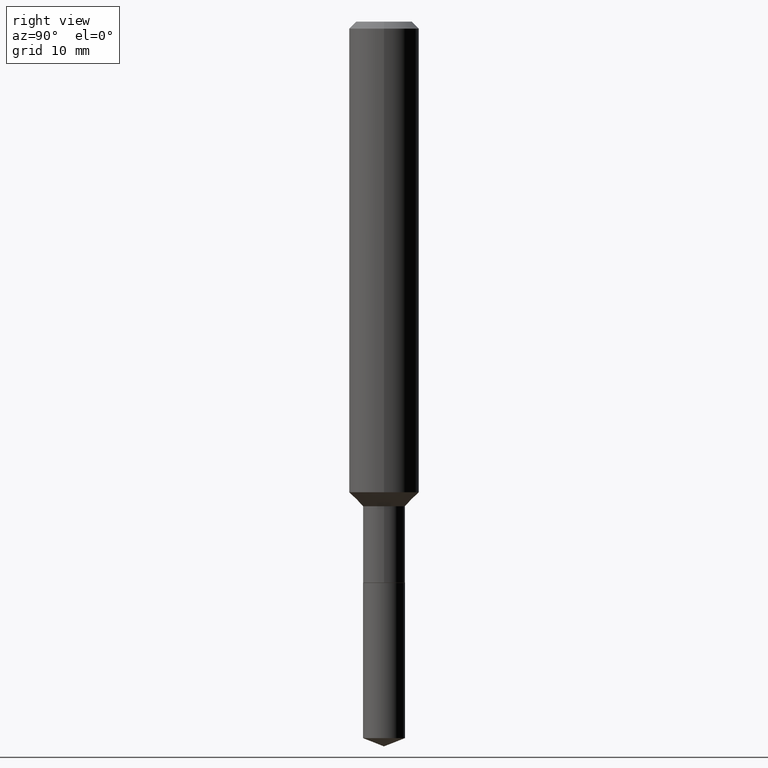
[diagram: clean part render]
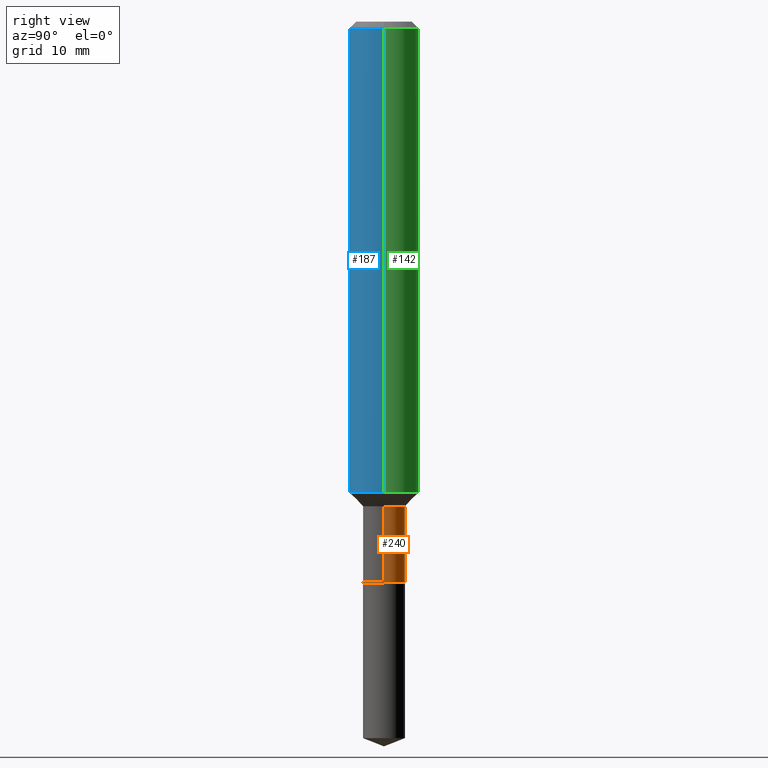
[diagram: same view with three faces highlighted in distinct colors, each labeled with its STEP entity id]
A machine part, right view with three faces highlighted in distinct colors.
Their STEP definitions:

[orange] entity #240 — the highlighted cylindrical surface (edge-blend (fillet) strip) has radius 1.7996 mm, axis along (-0, 0, 1).
#1 = VERTEX_POINT ( 'NONE', #247 ) ;
#10 = CARTESIAN_POINT ( 'NONE',  ( -0.07084999999999999631, -5.644031665015095667E-15, -1.889200000000000212 ) ) ;
#18 = ORIENTED_EDGE ( 'NONE', *, *, #101, .T. ) ;
#19 = EDGE_CURVE ( 'NONE', #117, #277, #128, .T. ) ;
#21 = DIRECTION ( 'NONE',  ( -2.445468806185136597E-29, 3.491481338843145583E-15, 1.000000000000000000 ) ) ;
#53 = CYLINDRICAL_SURFACE ( 'NONE', #166, 0.07084999999999998244 ) ;
#64 = EDGE_CURVE ( 'NONE', #1, #367, #202, .T. ) ;
#84 = ORIENTED_EDGE ( 'NONE', *, *, #200, .F. ) ;
#101 = EDGE_CURVE ( 'NONE', #277, #367, #260, .T. ) ;
#117 = VERTEX_POINT ( 'NONE', #447 ) ;
#128 = CIRCLE ( 'NONE', #261, 0.07084999999999998244 ) ;
#146 = EDGE_LOOP ( 'NONE', ( #151, #18, #456, #84 ) ) ;
#151 = ORIENTED_EDGE ( 'NONE', *, *, #19, .T. ) ;
#166 = AXIS2_PLACEMENT_3D ( 'NONE', #486, #278, #352 ) ;
#200 = EDGE_CURVE ( 'NONE', #117, #1, #425, .T. ) ;
#202 = CIRCLE ( 'NONE', #235, 0.07084999999999995468 ) ;
#224 = CARTESIAN_POINT ( 'NONE',  ( -0.07084999999999998244, 5.034195282860308569E-16, -3.485065511445599567E-30 ) ) ;
#235 = AXIS2_PLACEMENT_3D ( 'NONE', #443, #403, #478 ) ;
#240 = ADVANCED_FACE ( 'NONE', ( #392 ), #53, .T. ) ;
#247 = CARTESIAN_POINT ( 'NONE',  ( 0.07084999999999995468, -6.193538746973854908E-15, -1.632200000000000095 ) ) ;
#255 = CARTESIAN_POINT ( 'NONE',  ( 4.619979668644960403E-29, -6.596106545342470986E-15, -1.889200000000000212 ) ) ;
#259 = DIRECTION ( 'NONE',  ( -2.445468806185136877E-29, 3.491481338843145188E-15, 1.000000000000000000 ) ) ;
#260 = LINE ( 'NONE', #224, #428 ) ;
#261 = AXIS2_PLACEMENT_3D ( 'NONE', #255, #21, #467 ) ;
#277 = VERTEX_POINT ( 'NONE', #10 ) ;
#278 = DIRECTION ( 'NONE',  ( -2.445468806185136597E-29, 3.491481338843145583E-15, 1.000000000000000000 ) ) ;
#295 = VECTOR ( 'NONE', #389, 39.37007874015748143 ) ;
#342 = CARTESIAN_POINT ( 'NONE',  ( -0.07084999999999995468, -5.644031665015095667E-15, -1.632200000000000095 ) ) ;
#352 = DIRECTION ( 'NONE',  ( 1.000000000000000000, -6.982962677686266711E-15, 4.876176775795935232E-29 ) ) ;
#367 = VERTEX_POINT ( 'NONE', #342 ) ;
#389 = DIRECTION ( 'NONE',  ( -2.445468806185136877E-29, 3.491481338843145188E-15, 1.000000000000000000 ) ) ;
#392 = FACE_OUTER_BOUND ( 'NONE', #146, .T. ) ;
#403 = DIRECTION ( 'NONE',  ( -2.445468806185136597E-29, 3.491481338843145583E-15, 1.000000000000000000 ) ) ;
#425 = LINE ( 'NONE', #449, #295 ) ;
#428 = VECTOR ( 'NONE', #259, 39.37007874015748143 ) ;
#443 = CARTESIAN_POINT ( 'NONE',  ( 3.991494185455380396E-29, -5.698795841259782653E-15, -1.632200000000000095 ) ) ;
#447 = CARTESIAN_POINT ( 'NONE',  ( 0.07084999999999998244, -7.090849451056543241E-15, -1.889200000000000212 ) ) ;
#449 = CARTESIAN_POINT ( 'NONE',  ( 0.07084999999999998244, -4.947429057140718608E-16, 3.454771245651419209E-30 ) ) ;
#456 = ORIENTED_EDGE ( 'NONE', *, *, #64, .F. ) ;
#467 = DIRECTION ( 'NONE',  ( 1.000000000000000000, -6.982962677686265133E-15, 0.000000000000000000 ) ) ;
#478 = DIRECTION ( 'NONE',  ( 1.000000000000000000, -6.982962677686267499E-15, 0.000000000000000000 ) ) ;
#486 = CARTESIAN_POINT ( 'NONE',  ( 0.000000000000000000, 0.000000000000000000, 0.000000000000000000 ) ) ;

[blue] entity #187 — the highlighted cylindrical surface (edge-blend (fillet) strip) has radius 2.9997 mm, axis along (-0, 0, 1).
#32 = CARTESIAN_POINT ( 'NONE',  ( 0.000000000000000000, 0.000000000000000000, 0.000000000000000000 ) ) ;
#41 = CIRCLE ( 'NONE', #435, 0.1180999999999999966 ) ;
#51 = AXIS2_PLACEMENT_3D ( 'NONE', #32, #481, #141 ) ;
#54 = VERTEX_POINT ( 'NONE', #302 ) ;
#60 = ORIENTED_EDGE ( 'NONE', *, *, #109, .T. ) ;
#67 = CARTESIAN_POINT ( 'NONE',  ( 0.1181000000000001077, -8.246878922347488542E-16, 5.758764772215005345E-30 ) ) ;
#85 = CARTESIAN_POINT ( 'NONE',  ( -0.1181000000000001077, 8.391509709326790846E-16, -5.809262341591049389E-30 ) ) ;
#99 = DIRECTION ( 'NONE',  ( 1.000000000000000000, -6.982962677686269077E-15, 0.000000000000000000 ) ) ;
#109 = EDGE_CURVE ( 'NONE', #208, #472, #211, .T. ) ;
#113 = VERTEX_POINT ( 'NONE', #219 ) ;
#134 = DIRECTION ( 'NONE',  ( -2.445468806185136597E-29, 3.491481338843145583E-15, 1.000000000000000000 ) ) ;
#137 = EDGE_CURVE ( 'NONE', #54, #113, #41, .T. ) ;
#141 = DIRECTION ( 'NONE',  ( 1.000000000000000000, -6.982962677686266711E-15, 4.876176775795935793E-29 ) ) ;
#165 = EDGE_CURVE ( 'NONE', #472, #113, #440, .T. ) ;
#178 = FACE_OUTER_BOUND ( 'NONE', #361, .T. ) ;
#180 = CARTESIAN_POINT ( 'NONE',  ( 5.776197320209327532E-31, -8.246878922347559293E-17, -0.02362000000000014088 ) ) ;
#187 = ADVANCED_FACE ( 'NONE', ( #178 ), #376, .T. ) ;
#191 = AXIS2_PLACEMENT_3D ( 'NONE', #375, #299, #99 ) ;
#208 = VERTEX_POINT ( 'NONE', #285 ) ;
#211 = CIRCLE ( 'NONE', #191, 0.1181000000000001909 ) ;
#219 = CARTESIAN_POINT ( 'NONE',  ( 0.1180999999999999966, -9.071566814582237199E-16, -0.02362000000000014088 ) ) ;
#256 = VECTOR ( 'NONE', #484, 39.37007874015748143 ) ;
#262 = VECTOR ( 'NONE', #321, 39.37007874015748143 ) ;
#285 = CARTESIAN_POINT ( 'NONE',  ( -0.1181000000000002048, -4.694672377066764086E-15, -1.584950000000000081 ) ) ;
#299 = DIRECTION ( 'NONE',  ( -2.445468806185136597E-29, 3.491481338843145583E-15, 1.000000000000000000 ) ) ;
#302 = CARTESIAN_POINT ( 'NONE',  ( -0.1180999999999999966, -1.968995097678779884E-15, -0.02362000000000014088 ) ) ;
#304 = EDGE_CURVE ( 'NONE', #208, #54, #316, .T. ) ;
#312 = ORIENTED_EDGE ( 'NONE', *, *, #165, .T. ) ;
#316 = LINE ( 'NONE', #85, #262 ) ;
#321 = DIRECTION ( 'NONE',  ( -2.445468806185136877E-29, 3.491481338843145188E-15, 1.000000000000000000 ) ) ;
#324 = ORIENTED_EDGE ( 'NONE', *, *, #137, .F. ) ;
#331 = DIRECTION ( 'NONE',  ( 1.000000000000000000, -6.982962677686266711E-15, 0.000000000000000000 ) ) ;
#345 = ORIENTED_EDGE ( 'NONE', *, *, #304, .F. ) ;
#361 = EDGE_LOOP ( 'NONE', ( #345, #60, #312, #324 ) ) ;
#375 = CARTESIAN_POINT ( 'NONE',  ( 3.875945784363132517E-29, -5.533823347999443072E-15, -1.584950000000000081 ) ) ;
#376 = CYLINDRICAL_SURFACE ( 'NONE', #51, 0.1181000000000001077 ) ;
#435 = AXIS2_PLACEMENT_3D ( 'NONE', #180, #134, #331 ) ;
#440 = LINE ( 'NONE', #67, #256 ) ;
#472 = VERTEX_POINT ( 'NONE', #482 ) ;
#481 = DIRECTION ( 'NONE',  ( -2.445468806185136597E-29, 3.491481338843145583E-15, 1.000000000000000000 ) ) ;
#482 = CARTESIAN_POINT ( 'NONE',  ( 0.1181000000000002048, -6.358511240234192912E-15, -1.584950000000000081 ) ) ;
#484 = DIRECTION ( 'NONE',  ( -2.445468806185136877E-29, 3.491481338843145188E-15, 1.000000000000000000 ) ) ;

[green] entity #142 — the highlighted cylindrical surface (edge-blend (fillet) strip) has radius 2.9997 mm, axis along (-0, 0, 1).
#3 = CARTESIAN_POINT ( 'NONE',  ( 5.776197320209327532E-31, -8.246878922347559293E-17, -0.02362000000000014088 ) ) ;
#54 = VERTEX_POINT ( 'NONE', #302 ) ;
#67 = CARTESIAN_POINT ( 'NONE',  ( 0.1181000000000001077, -8.246878922347488542E-16, 5.758764772215005345E-30 ) ) ;
#80 = ORIENTED_EDGE ( 'NONE', *, *, #90, .T. ) ;
#85 = CARTESIAN_POINT ( 'NONE',  ( -0.1181000000000001077, 8.391509709326790846E-16, -5.809262341591049389E-30 ) ) ;
#90 = EDGE_CURVE ( 'NONE', #472, #208, #461, .T. ) ;
#102 = CARTESIAN_POINT ( 'NONE',  ( 3.875945784363132517E-29, -5.533823347999443072E-15, -1.584950000000000081 ) ) ;
#113 = VERTEX_POINT ( 'NONE', #219 ) ;
#140 = DIRECTION ( 'NONE',  ( 1.000000000000000000, -6.982962677686269077E-15, 0.000000000000000000 ) ) ;
#142 = ADVANCED_FACE ( 'NONE', ( #436 ), #404, .T. ) ;
#143 = AXIS2_PLACEMENT_3D ( 'NONE', #102, #371, #140 ) ;
#156 = DIRECTION ( 'NONE',  ( 1.000000000000000000, -6.982962677686266711E-15, 0.000000000000000000 ) ) ;
#165 = EDGE_CURVE ( 'NONE', #472, #113, #440, .T. ) ;
#176 = DIRECTION ( 'NONE',  ( -2.445468806185136597E-29, 3.491481338843145583E-15, 1.000000000000000000 ) ) ;
#183 = CARTESIAN_POINT ( 'NONE',  ( 0.000000000000000000, 0.000000000000000000, 0.000000000000000000 ) ) ;
#193 = ORIENTED_EDGE ( 'NONE', *, *, #165, .F. ) ;
#198 = ORIENTED_EDGE ( 'NONE', *, *, #304, .T. ) ;
#205 = DIRECTION ( 'NONE',  ( -2.445468806185136597E-29, 3.491481338843145583E-15, 1.000000000000000000 ) ) ;
#208 = VERTEX_POINT ( 'NONE', #285 ) ;
#219 = CARTESIAN_POINT ( 'NONE',  ( 0.1180999999999999966, -9.071566814582237199E-16, -0.02362000000000014088 ) ) ;
#243 = ORIENTED_EDGE ( 'NONE', *, *, #249, .F. ) ;
#249 = EDGE_CURVE ( 'NONE', #113, #54, #393, .T. ) ;
#256 = VECTOR ( 'NONE', #484, 39.37007874015748143 ) ;
#262 = VECTOR ( 'NONE', #321, 39.37007874015748143 ) ;
#280 = AXIS2_PLACEMENT_3D ( 'NONE', #3, #205, #156 ) ;
#281 = EDGE_LOOP ( 'NONE', ( #80, #198, #243, #193 ) ) ;
#285 = CARTESIAN_POINT ( 'NONE',  ( -0.1181000000000002048, -4.694672377066764086E-15, -1.584950000000000081 ) ) ;
#302 = CARTESIAN_POINT ( 'NONE',  ( -0.1180999999999999966, -1.968995097678779884E-15, -0.02362000000000014088 ) ) ;
#304 = EDGE_CURVE ( 'NONE', #208, #54, #316, .T. ) ;
#310 = AXIS2_PLACEMENT_3D ( 'NONE', #183, #176, #336 ) ;
#316 = LINE ( 'NONE', #85, #262 ) ;
#321 = DIRECTION ( 'NONE',  ( -2.445468806185136877E-29, 3.491481338843145188E-15, 1.000000000000000000 ) ) ;
#336 = DIRECTION ( 'NONE',  ( 1.000000000000000000, -6.982962677686266711E-15, 4.876176775795935793E-29 ) ) ;
#371 = DIRECTION ( 'NONE',  ( -2.445468806185136597E-29, 3.491481338843145583E-15, 1.000000000000000000 ) ) ;
#393 = CIRCLE ( 'NONE', #280, 0.1180999999999999966 ) ;
#404 = CYLINDRICAL_SURFACE ( 'NONE', #310, 0.1181000000000001077 ) ;
#436 = FACE_OUTER_BOUND ( 'NONE', #281, .T. ) ;
#440 = LINE ( 'NONE', #67, #256 ) ;
#461 = CIRCLE ( 'NONE', #143, 0.1181000000000001909 ) ;
#472 = VERTEX_POINT ( 'NONE', #482 ) ;
#482 = CARTESIAN_POINT ( 'NONE',  ( 0.1181000000000002048, -6.358511240234192912E-15, -1.584950000000000081 ) ) ;
#484 = DIRECTION ( 'NONE',  ( -2.445468806185136877E-29, 3.491481338843145188E-15, 1.000000000000000000 ) ) ;